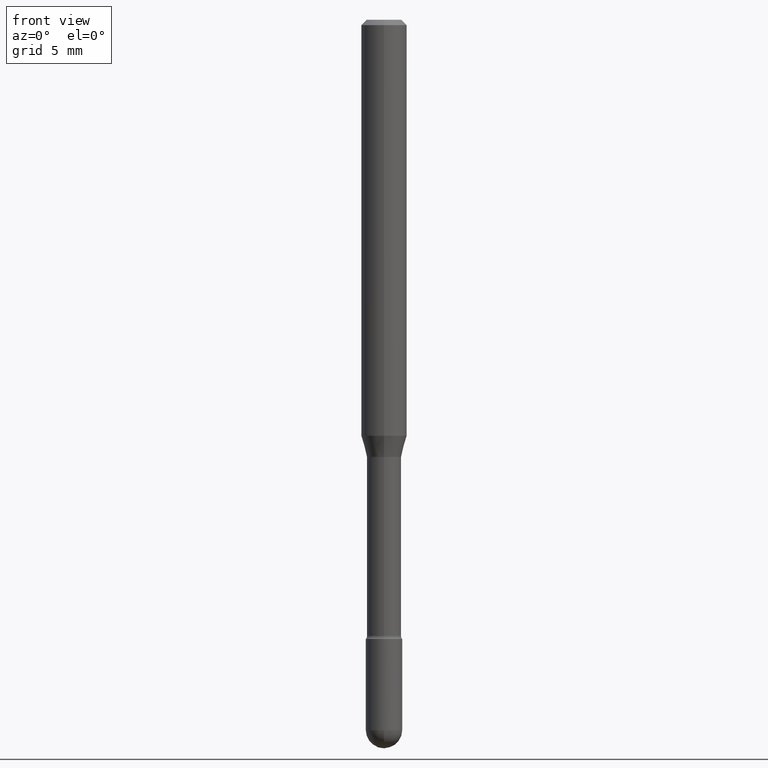
[diagram: clean part render]
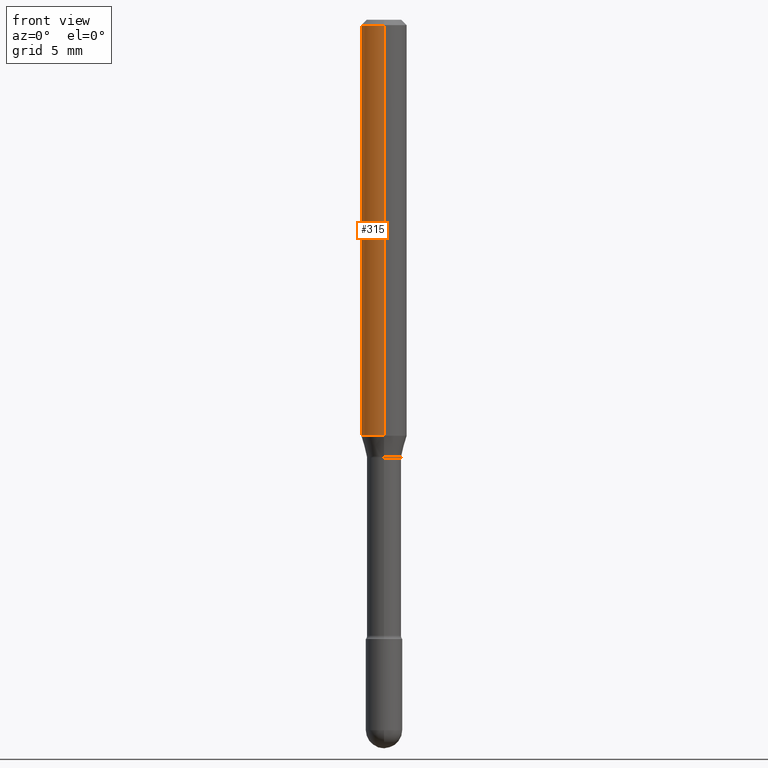
[diagram: same view with one face highlighted and labeled with its STEP entity id]
A machine part, front view. The second image highlights one B-rep face of the part: STEP entity #315.
In plain terms, the highlighted cylindrical surface (edge-blend (fillet) strip) has radius 1.5875 mm, axis along (-0, 0, 1).
Its self-contained STEP definition (entity closure, byte-faithful):
#6 = DIRECTION ( 'NONE',  ( -2.445363965564486438E-29, 3.491631476579074343E-15, 1.000000000000000000 ) ) ;
#48 = DIRECTION ( 'NONE',  ( -6.982962677686265922E-15, -1.000000000000000000, 3.483106191921935554E-15 ) ) ;
#66 = ORIENTED_EDGE ( 'NONE', *, *, #144, .T. ) ;
#76 = VERTEX_POINT ( 'NONE', #175 ) ;
#105 = LINE ( 'NONE', #266, #333 ) ;
#119 = VECTOR ( 'NONE', #245, 39.37007874015748143 ) ;
#139 = CARTESIAN_POINT ( 'NONE',  ( 4.440892098500904235E-16, 0.06249999999999600320, -1.142153212482682534 ) ) ;
#144 = EDGE_CURVE ( 'NONE', #177, #432, #263, .T. ) ;
#175 = CARTESIAN_POINT ( 'NONE',  ( -4.364351673553912750E-16, -0.06250000000000005551, -0.01499999999999986587 ) ) ;
#177 = VERTEX_POINT ( 'NONE', #139 ) ;
#183 = EDGE_CURVE ( 'NONE', #432, #76, #105, .T. ) ;
#202 = ORIENTED_EDGE ( 'NONE', *, *, #330, .F. ) ;
#233 = EDGE_CURVE ( 'NONE', #494, #76, #397, .T. ) ;
#234 = CARTESIAN_POINT ( 'NONE',  ( -4.364351673553637635E-16, -0.06250000000000399680, -1.142153212482682090 ) ) ;
#241 = EDGE_LOOP ( 'NONE', ( #202, #66, #405, #523 ) ) ;
#245 = DIRECTION ( 'NONE',  ( -2.445363965564486438E-29, 3.491631476579074343E-15, 1.000000000000000000 ) ) ;
#263 = CIRCLE ( 'NONE', #268, 0.06250000000000000000 ) ;
#264 = CARTESIAN_POINT ( 'NONE',  ( 3.668045948346749783E-31, -5.237447214868640110E-17, -0.01500000000000008271 ) ) ;
#266 = CARTESIAN_POINT ( 'NONE',  ( -4.364351673553916201E-16, -0.06250000000000000000, 6.963003661774382343E-16 ) ) ;
#268 = AXIS2_PLACEMENT_3D ( 'NONE', #347, #6, #476 ) ;
#272 = CYLINDRICAL_SURFACE ( 'NONE', #341, 0.06250000000000000000 ) ;
#280 = DIRECTION ( 'NONE',  ( -6.982962677686265922E-15, -1.000000000000000000, 3.491631476579074343E-15 ) ) ;
#315 = ADVANCED_FACE ( 'NONE', ( #318 ), #272, .T. ) ;
#318 = FACE_OUTER_BOUND ( 'NONE', #241, .T. ) ;
#325 = LINE ( 'NONE', #489, #119 ) ;
#330 = EDGE_CURVE ( 'NONE', #177, #494, #325, .T. ) ;
#333 = VECTOR ( 'NONE', #399, 39.37007874015748143 ) ;
#341 = AXIS2_PLACEMENT_3D ( 'NONE', #444, #390, #280 ) ;
#347 = CARTESIAN_POINT ( 'NONE',  ( 2.792980308958869035E-29, -3.987978107780441348E-15, -1.142153212482682312 ) ) ;
#390 = DIRECTION ( 'NONE',  ( -2.445363965564486438E-29, 3.491631476579074343E-15, 1.000000000000000000 ) ) ;
#397 = CIRCLE ( 'NONE', #473, 0.06250000000000000000 ) ;
#399 = DIRECTION ( 'NONE',  ( -2.445363965564486438E-29, 3.491631476579074343E-15, 1.000000000000000000 ) ) ;
#405 = ORIENTED_EDGE ( 'NONE', *, *, #183, .T. ) ;
#432 = VERTEX_POINT ( 'NONE', #234 ) ;
#434 = DIRECTION ( 'NONE',  ( -2.445363965564486438E-29, 3.491631476579074343E-15, 1.000000000000000000 ) ) ;
#444 = CARTESIAN_POINT ( 'NONE',  ( -1.169113584055446105E-44, 1.669184350826100908E-30, 4.780733988912460139E-16 ) ) ;
#473 = AXIS2_PLACEMENT_3D ( 'NONE', #264, #434, #48 ) ;
#476 = DIRECTION ( 'NONE',  ( -6.982962677686265922E-15, -1.000000000000000000, 4.370956789862821150E-15 ) ) ;
#489 = CARTESIAN_POINT ( 'NONE',  ( 4.440892098500625669E-16, 0.06250000000000000000, 2.598464316050538922E-16 ) ) ;
#494 = VERTEX_POINT ( 'NONE', #531 ) ;
#523 = ORIENTED_EDGE ( 'NONE', *, *, #233, .F. ) ;
#531 = CARTESIAN_POINT ( 'NONE',  ( 4.440892098500906207E-16, 0.06249999999999993755, -0.01500000000000030129 ) ) ;